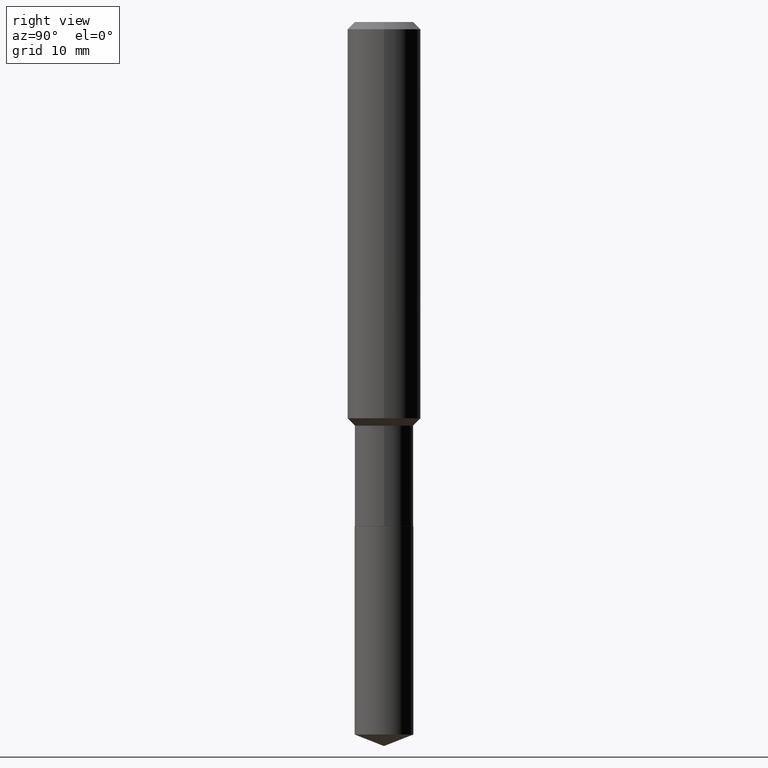
[diagram: clean part render]
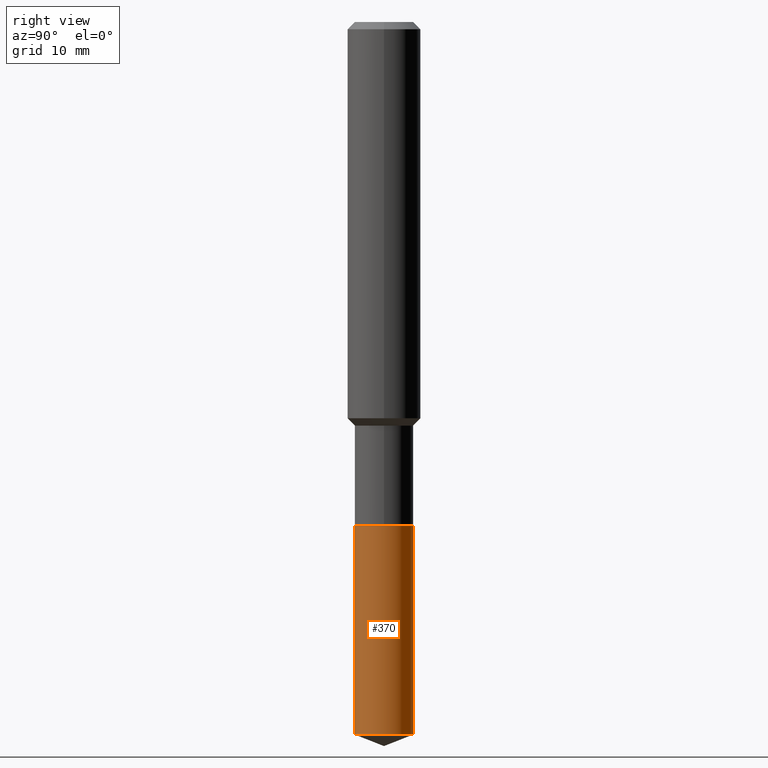
[diagram: same view with one face highlighted and labeled with its STEP entity id]
A machine part, right view. The second image highlights one B-rep face of the part: STEP entity #370.
In plain terms, the highlighted cylindrical surface (edge-blend (fillet) strip) has radius 3.2004 mm, axis along (-0, 0, 1).
Its self-contained STEP definition (entity closure, byte-faithful):
#6 = ORIENTED_EDGE ( 'NONE', *, *, #36, .T. ) ;
#8 = DIRECTION ( 'NONE',  ( -6.982962677686265922E-15, -1.000000000000000000, 4.336266656609941617E-15 ) ) ;
#11 = DIRECTION ( 'NONE',  ( -2.445321399674212397E-29, 3.491692433356646639E-15, 1.000000000000000000 ) ) ;
#21 = LINE ( 'NONE', #165, #238 ) ;
#36 = EDGE_CURVE ( 'NONE', #420, #454, #374, .T. ) ;
#57 = CARTESIAN_POINT ( 'NONE',  ( -8.798532973884166966E-16, -0.1260000000000075782, -2.165299999999999336 ) ) ;
#59 = DIRECTION ( 'NONE',  ( -2.445321399674212677E-29, 3.491692433356646244E-15, 1.000000000000000000 ) ) ;
#67 = DIRECTION ( 'NONE',  ( -6.982962677686265922E-15, -1.000000000000000000, 4.336266656609941617E-15 ) ) ;
#103 = EDGE_CURVE ( 'NONE', #361, #430, #107, .T. ) ;
#107 = CIRCLE ( 'NONE', #148, 0.1260000000000000009 ) ;
#112 = EDGE_CURVE ( 'NONE', #420, #361, #21, .T. ) ;
#117 = AXIS2_PLACEMENT_3D ( 'NONE', #246, #59, #212 ) ;
#121 = CARTESIAN_POINT ( 'NONE',  ( 5.295173606032675561E-29, -7.560104542997063911E-15, -2.165299999999999780 ) ) ;
#124 = EDGE_LOOP ( 'NONE', ( #6, #335, #271, #283 ) ) ;
#134 = CARTESIAN_POINT ( 'NONE',  ( 5.295173606032675561E-29, -7.560104542997063911E-15, -2.165299999999999780 ) ) ;
#148 = AXIS2_PLACEMENT_3D ( 'NONE', #121, #241, #8 ) ;
#165 = CARTESIAN_POINT ( 'NONE',  ( -8.798532973884166966E-16, -0.1260000000000075782, -2.165299999999999336 ) ) ;
#212 = DIRECTION ( 'NONE',  ( -6.982962677686265922E-15, -1.000000000000000000, 4.336266656609941617E-15 ) ) ;
#225 = VECTOR ( 'NONE', #253, 39.37007874015748143 ) ;
#238 = VECTOR ( 'NONE', #11, 39.37007874015748143 ) ;
#241 = DIRECTION ( 'NONE',  ( -2.445321399674212677E-29, 3.491692433356646244E-15, 1.000000000000000000 ) ) ;
#246 = CARTESIAN_POINT ( 'NONE',  ( 7.484389844422130084E-29, -1.068610253065805926E-14, -3.060567280072517882 ) ) ;
#248 = CARTESIAN_POINT ( 'NONE',  ( 8.952838470578011823E-16, 0.1259999999999893705, -3.060567280072518770 ) ) ;
#253 = DIRECTION ( 'NONE',  ( -2.445321399674212397E-29, 3.491692433356646639E-15, 1.000000000000000000 ) ) ;
#255 = CARTESIAN_POINT ( 'NONE',  ( 8.952838470578011823E-16, 0.1259999999999924514, -2.165300000000000669 ) ) ;
#257 = LINE ( 'NONE', #402, #225 ) ;
#258 = AXIS2_PLACEMENT_3D ( 'NONE', #134, #483, #67 ) ;
#271 = ORIENTED_EDGE ( 'NONE', *, *, #103, .F. ) ;
#283 = ORIENTED_EDGE ( 'NONE', *, *, #112, .F. ) ;
#291 = EDGE_CURVE ( 'NONE', #454, #430, #257, .T. ) ;
#335 = ORIENTED_EDGE ( 'NONE', *, *, #291, .T. ) ;
#361 = VERTEX_POINT ( 'NONE', #57 ) ;
#368 = CYLINDRICAL_SURFACE ( 'NONE', #258, 0.1260000000000000009 ) ;
#370 = ADVANCED_FACE ( 'NONE', ( #408 ), #368, .T. ) ;
#374 = CIRCLE ( 'NONE', #117, 0.1260000000000000009 ) ;
#394 = CARTESIAN_POINT ( 'NONE',  ( -8.798532973883949043E-16, -0.1260000000000107145, -3.060567280072517438 ) ) ;
#402 = CARTESIAN_POINT ( 'NONE',  ( 8.952838470577790942E-16, 0.1259999999999924514, -2.165300000000000669 ) ) ;
#408 = FACE_OUTER_BOUND ( 'NONE', #124, .T. ) ;
#420 = VERTEX_POINT ( 'NONE', #394 ) ;
#430 = VERTEX_POINT ( 'NONE', #255 ) ;
#454 = VERTEX_POINT ( 'NONE', #248 ) ;
#483 = DIRECTION ( 'NONE',  ( -2.445321399674212677E-29, 3.491692433356646244E-15, 1.000000000000000000 ) ) ;